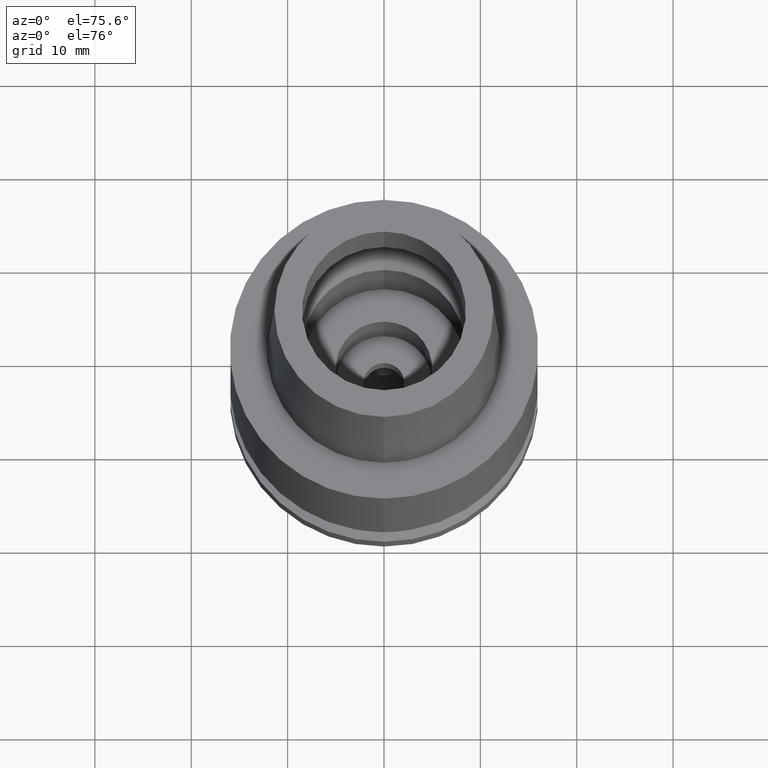
[diagram: clean part render]
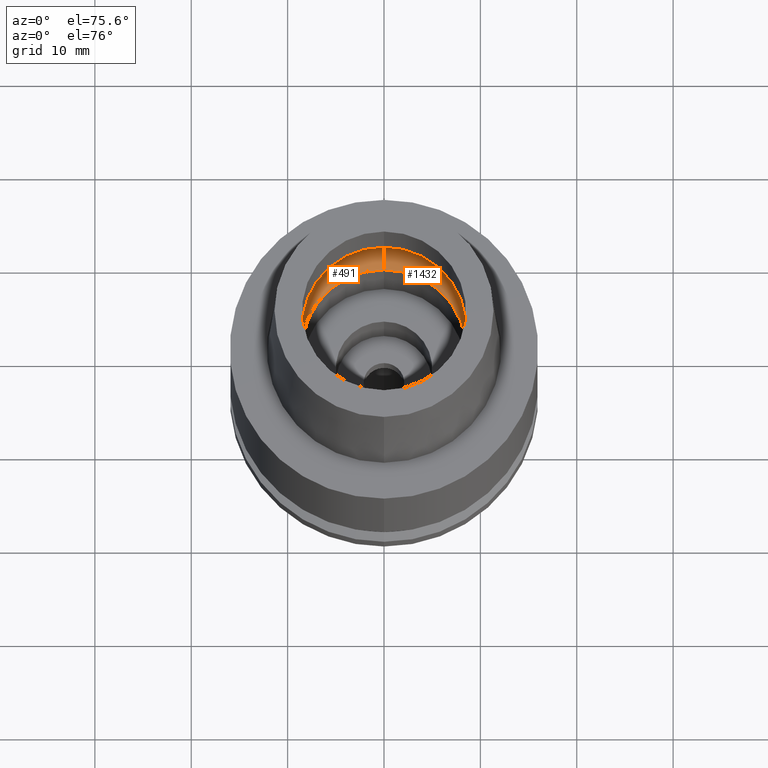
[diagram: same view with one multi-face feature highlighted, each face labeled with its STEP entity id]
A machine part, auxiliary view. The highlighted faces form ONE feature: a constant-radius fillet chain: 2 tangent blend faces with common blend radius 4 mm. The faces share edges in the B-rep.
Their STEP definitions:
[1] entity #491 (Torus):
#28 = AXIS2_PLACEMENT_3D ( 'NONE', #592, #2258, #389 ) ;
#55 = EDGE_LOOP ( 'NONE', ( #1353, #1740, #1478, #899 ) ) ;
#149 = CARTESIAN_POINT ( 'NONE',  ( 0.0000000000000000000, 0.0000000000000000000, 0.04981086116925999979 ) ) ;
#234 = AXIS2_PLACEMENT_3D ( 'NONE', #1404, #2039, #1603 ) ;
#389 = DIRECTION ( 'NONE',  ( 0.0000000000000000000, 0.5624999999999932276, -0.8267972847076892062 ) ) ;
#411 = TOROIDAL_SURFACE ( 'NONE', #234, 6.250000000000000000, 4.000000000000000000 ) ;
#456 = CIRCLE ( 'NONE', #1250, 3.999999999999999112 ) ;
#491 = ADVANCED_FACE ( 'NONE', ( #1598 ), #411, .F. ) ;
#528 = VERTEX_POINT ( 'NONE', #728 ) ;
#592 = CARTESIAN_POINT ( 'NONE',  ( 0.0000000000000000000, 6.250000000000000000, 3.357000000000000206 ) ) ;
#616 = CARTESIAN_POINT ( 'NONE',  ( 0.0000000000000000000, -6.250000000000000000, 3.357000000000000206 ) ) ;
#728 = CARTESIAN_POINT ( 'NONE',  ( 0.0000000000000000000, 8.500000000000000000, 0.04981086116925999979 ) ) ;
#731 = EDGE_CURVE ( 'NONE', #2174, #2308, #2634, .T. ) ;
#776 = CARTESIAN_POINT ( 'NONE',  ( 0.0000000000000000000, 0.0000000000000000000, 3.357000000000000206 ) ) ;
#831 = DIRECTION ( 'NONE',  ( 0.0000000000000000000, 0.0000000000000000000, -1.000000000000000000 ) ) ;
#899 = ORIENTED_EDGE ( 'NONE', *, *, #1528, .T. ) ;
#1001 = EDGE_CURVE ( 'NONE', #2016, #2174, #456, .T. ) ;
#1002 = DIRECTION ( 'NONE',  ( 0.0000000000000000000, 1.000000000000000000, 0.0000000000000000000 ) ) ;
#1164 = EDGE_CURVE ( 'NONE', #528, #2016, #2325, .T. ) ;
#1183 = CARTESIAN_POINT ( 'NONE',  ( 0.0000000000000000000, -8.500000000000000000, 0.04981086116925999979 ) ) ;
#1201 = AXIS2_PLACEMENT_3D ( 'NONE', #776, #831, #2065 ) ;
#1203 = AXIS2_PLACEMENT_3D ( 'NONE', #149, #1846, #1002 ) ;
#1250 = AXIS2_PLACEMENT_3D ( 'NONE', #616, #2099, #1625 ) ;
#1353 = ORIENTED_EDGE ( 'NONE', *, *, #731, .F. ) ;
#1404 = CARTESIAN_POINT ( 'NONE',  ( 0.0000000000000000000, 0.0000000000000000000, 3.357000000000000206 ) ) ;
#1478 = ORIENTED_EDGE ( 'NONE', *, *, #1164, .F. ) ;
#1528 = EDGE_CURVE ( 'NONE', #528, #2308, #2155, .T. ) ;
#1580 = CARTESIAN_POINT ( 'NONE',  ( 0.0000000000000000000, 10.25000000000000000, 3.357000000000000206 ) ) ;
#1598 = FACE_OUTER_BOUND ( 'NONE', #55, .T. ) ;
#1603 = DIRECTION ( 'NONE',  ( 0.0000000000000000000, -1.000000000000000000, 0.0000000000000000000 ) ) ;
#1625 = DIRECTION ( 'NONE',  ( 0.0000000000000000000, -0.5624999999999932276, -0.8267972847076892062 ) ) ;
#1680 = CARTESIAN_POINT ( 'NONE',  ( 0.0000000000000000000, -10.25000000000000000, 3.357000000000000206 ) ) ;
#1740 = ORIENTED_EDGE ( 'NONE', *, *, #1001, .F. ) ;
#1846 = DIRECTION ( 'NONE',  ( 0.0000000000000000000, 0.0000000000000000000, 1.000000000000000000 ) ) ;
#2016 = VERTEX_POINT ( 'NONE', #1183 ) ;
#2039 = DIRECTION ( 'NONE',  ( 0.0000000000000000000, 0.0000000000000000000, -1.000000000000000000 ) ) ;
#2065 = DIRECTION ( 'NONE',  ( 0.0000000000000000000, -1.000000000000000000, 0.0000000000000000000 ) ) ;
#2099 = DIRECTION ( 'NONE',  ( -1.000000000000000000, 0.0000000000000000000, 0.0000000000000000000 ) ) ;
#2155 = CIRCLE ( 'NONE', #28, 3.999999999999999112 ) ;
#2174 = VERTEX_POINT ( 'NONE', #1680 ) ;
#2258 = DIRECTION ( 'NONE',  ( 1.000000000000000000, 0.0000000000000000000, 0.0000000000000000000 ) ) ;
#2308 = VERTEX_POINT ( 'NONE', #1580 ) ;
#2325 = CIRCLE ( 'NONE', #1203, 8.500000000000000000 ) ;
#2634 = CIRCLE ( 'NONE', #1201, 10.25000000000000000 ) ;
[2] entity #1432 (Torus):
#28 = AXIS2_PLACEMENT_3D ( 'NONE', #592, #2258, #389 ) ;
#100 = DIRECTION ( 'NONE',  ( 0.0000000000000000000, 0.0000000000000000000, -1.000000000000000000 ) ) ;
#346 = DIRECTION ( 'NONE',  ( 0.0000000000000000000, 0.0000000000000000000, 1.000000000000000000 ) ) ;
#352 = CARTESIAN_POINT ( 'NONE',  ( 0.0000000000000000000, 0.0000000000000000000, 3.357000000000000206 ) ) ;
#389 = DIRECTION ( 'NONE',  ( 0.0000000000000000000, 0.5624999999999932276, -0.8267972847076892062 ) ) ;
#456 = CIRCLE ( 'NONE', #1250, 3.999999999999999112 ) ;
#475 = EDGE_CURVE ( 'NONE', #2016, #528, #1641, .T. ) ;
#528 = VERTEX_POINT ( 'NONE', #728 ) ;
#592 = CARTESIAN_POINT ( 'NONE',  ( 0.0000000000000000000, 6.250000000000000000, 3.357000000000000206 ) ) ;
#616 = CARTESIAN_POINT ( 'NONE',  ( 0.0000000000000000000, -6.250000000000000000, 3.357000000000000206 ) ) ;
#728 = CARTESIAN_POINT ( 'NONE',  ( 0.0000000000000000000, 8.500000000000000000, 0.04981086116925999979 ) ) ;
#760 = DIRECTION ( 'NONE',  ( 0.0000000000000000000, 1.000000000000000000, 0.0000000000000000000 ) ) ;
#843 = ORIENTED_EDGE ( 'NONE', *, *, #475, .F. ) ;
#939 = ORIENTED_EDGE ( 'NONE', *, *, #1193, .F. ) ;
#955 = CARTESIAN_POINT ( 'NONE',  ( 0.0000000000000000000, 0.0000000000000000000, 0.04981086116925999979 ) ) ;
#1001 = EDGE_CURVE ( 'NONE', #2016, #2174, #456, .T. ) ;
#1154 = CIRCLE ( 'NONE', #2684, 10.25000000000000000 ) ;
#1183 = CARTESIAN_POINT ( 'NONE',  ( 0.0000000000000000000, -8.500000000000000000, 0.04981086116925999979 ) ) ;
#1193 = EDGE_CURVE ( 'NONE', #2308, #2174, #1154, .T. ) ;
#1247 = AXIS2_PLACEMENT_3D ( 'NONE', #955, #346, #1808 ) ;
#1250 = AXIS2_PLACEMENT_3D ( 'NONE', #616, #2099, #1625 ) ;
#1303 = FACE_OUTER_BOUND ( 'NONE', #1568, .T. ) ;
#1350 = DIRECTION ( 'NONE',  ( 0.0000000000000000000, -1.000000000000000000, 0.0000000000000000000 ) ) ;
#1432 = ADVANCED_FACE ( 'NONE', ( #1303 ), #2545, .F. ) ;
#1507 = AXIS2_PLACEMENT_3D ( 'NONE', #2367, #100, #1350 ) ;
#1528 = EDGE_CURVE ( 'NONE', #528, #2308, #2155, .T. ) ;
#1568 = EDGE_LOOP ( 'NONE', ( #843, #1958, #939, #2208 ) ) ;
#1580 = CARTESIAN_POINT ( 'NONE',  ( 0.0000000000000000000, 10.25000000000000000, 3.357000000000000206 ) ) ;
#1625 = DIRECTION ( 'NONE',  ( 0.0000000000000000000, -0.5624999999999932276, -0.8267972847076892062 ) ) ;
#1641 = CIRCLE ( 'NONE', #1247, 8.500000000000000000 ) ;
#1680 = CARTESIAN_POINT ( 'NONE',  ( 0.0000000000000000000, -10.25000000000000000, 3.357000000000000206 ) ) ;
#1808 = DIRECTION ( 'NONE',  ( 0.0000000000000000000, -1.000000000000000000, 0.0000000000000000000 ) ) ;
#1958 = ORIENTED_EDGE ( 'NONE', *, *, #1001, .T. ) ;
#2016 = VERTEX_POINT ( 'NONE', #1183 ) ;
#2099 = DIRECTION ( 'NONE',  ( -1.000000000000000000, 0.0000000000000000000, 0.0000000000000000000 ) ) ;
#2155 = CIRCLE ( 'NONE', #28, 3.999999999999999112 ) ;
#2174 = VERTEX_POINT ( 'NONE', #1680 ) ;
#2208 = ORIENTED_EDGE ( 'NONE', *, *, #1528, .F. ) ;
#2258 = DIRECTION ( 'NONE',  ( 1.000000000000000000, 0.0000000000000000000, 0.0000000000000000000 ) ) ;
#2308 = VERTEX_POINT ( 'NONE', #1580 ) ;
#2367 = CARTESIAN_POINT ( 'NONE',  ( 0.0000000000000000000, 0.0000000000000000000, 3.357000000000000206 ) ) ;
#2545 = TOROIDAL_SURFACE ( 'NONE', #1507, 6.250000000000000000, 4.000000000000000000 ) ;
#2633 = DIRECTION ( 'NONE',  ( 0.0000000000000000000, 0.0000000000000000000, -1.000000000000000000 ) ) ;
#2684 = AXIS2_PLACEMENT_3D ( 'NONE', #352, #2633, #760 ) ;